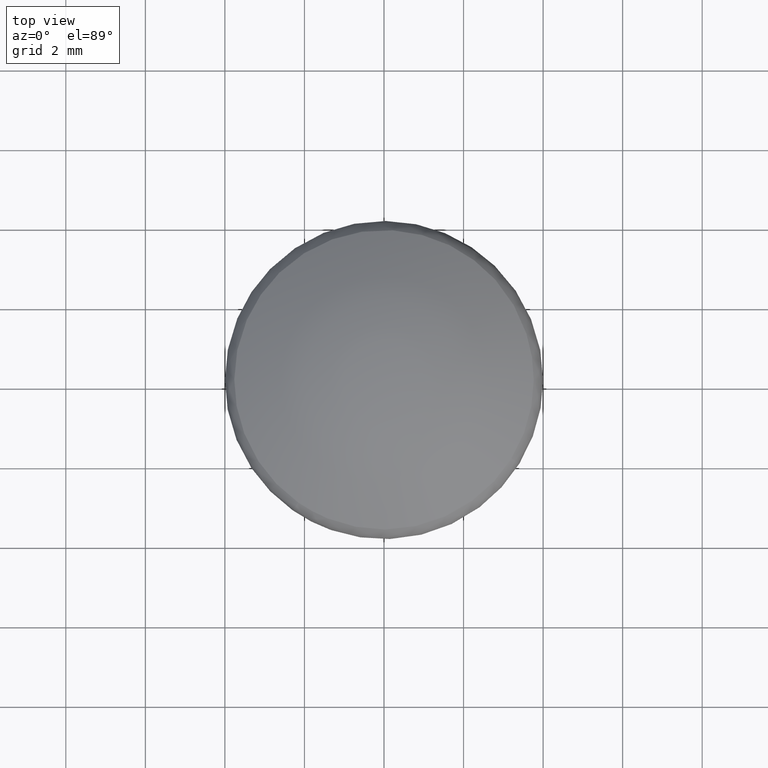
[diagram: clean part render]
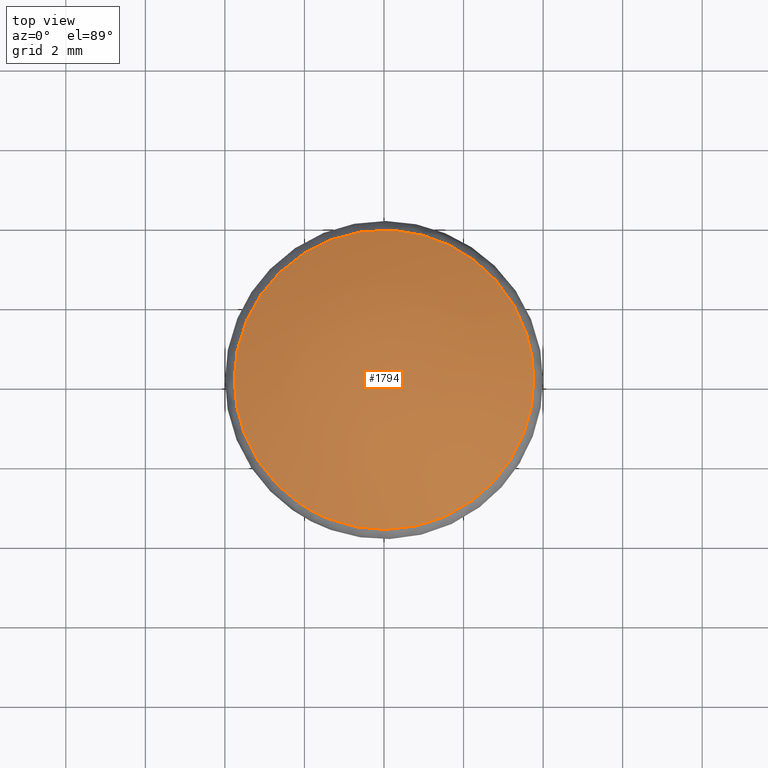
[diagram: same view with one face highlighted and labeled with its STEP entity id]
A machine part, top view. The second image highlights one B-rep face of the part: STEP entity #1794.
In plain terms, the highlighted face is a freeform B-spline surface patch.
Its self-contained STEP definition (entity closure, byte-faithful):
#90=CARTESIAN_POINT('',(-2.156803313178898,-3.084968678906296,0.424528305448922));
#91=VERTEX_POINT('',#90);
#105=CARTESIAN_POINT('',(-3.764150937455025,0.0,0.424528305583546));
#106=VERTEX_POINT('',#105);
#107=CARTESIAN_POINT('',(-2.156803313178898,-3.084968678906296,0.424528305448922));
#108=CARTESIAN_POINT('',(-3.764150937455026,-1.961218961121726,0.424528305583546));
#109=CARTESIAN_POINT('',(-3.764150937455025,0.0,0.424528305583546));
#117=(BOUNDED_CURVE()B_SPLINE_CURVE(2,(#107,#108,#109),.UNSPECIFIED.,.F.,.U.)B_SPLINE_CURVE_WITH_KNOTS((3,3),(0.848488271146942,1.0),.UNSPECIFIED.)CURVE()GEOMETRIC_REPRESENTATION_ITEM()RATIONAL_B_SPLINE_CURVE((0.860141114567185,0.822492968192948,1.0))REPRESENTATION_ITEM(''));
#118=EDGE_CURVE('',#91,#106,#117,.T.);
#120=CARTESIAN_POINT('',(3.764150937455025,0.0,0.424528305583546));
#121=VERTEX_POINT('',#120);
#122=CARTESIAN_POINT('',(-3.764150937455025,0.0,0.424528305583546));
#123=CARTESIAN_POINT('',(-3.764150937455025,3.764150937455025,0.424528305583546));
#124=CARTESIAN_POINT('',(0.0,3.764150937455025,0.424528305583546));
#125=CARTESIAN_POINT('',(3.764150937455025,3.764150937455025,0.424528305583546));
#126=CARTESIAN_POINT('',(3.764150937455025,0.0,0.424528305583546));
#134=(BOUNDED_CURVE()B_SPLINE_CURVE(2,(#122,#123,#124,#125,#126),.UNSPECIFIED.,.F.,.U.)B_SPLINE_CURVE_WITH_KNOTS((3,2,3),(0.0,0.250000000000000,0.500000000000000),.UNSPECIFIED.)CURVE()GEOMETRIC_REPRESENTATION_ITEM()RATIONAL_B_SPLINE_CURVE((1.0,0.707106781186547,1.0,0.707106781186547,1.0))REPRESENTATION_ITEM(''));
#135=EDGE_CURVE('',#106,#121,#134,.T.);
#137=CARTESIAN_POINT('',(3.203271676476022,-1.976836575735805,0.424528305539174));
#138=VERTEX_POINT('',#137);
#139=CARTESIAN_POINT('',(3.764150937455025,0.0,0.424528305583546));
#140=CARTESIAN_POINT('',(3.764150937455026,-1.067986206951992,0.424528305583546));
#141=CARTESIAN_POINT('',(3.203271676476021,-1.976836575735804,0.424528305539174));
#149=(BOUNDED_CURVE()B_SPLINE_CURVE(2,(#139,#140,#141),.UNSPECIFIED.,.F.,.U.)B_SPLINE_CURVE_WITH_KNOTS((3,3),(0.500000000000000,0.589762955611996),.UNSPECIFIED.)CURVE()GEOMETRIC_REPRESENTATION_ITEM()RATIONAL_B_SPLINE_CURVE((1.0,0.894836156002374,0.865190851690714))REPRESENTATION_ITEM(''));
#150=EDGE_CURVE('',#121,#138,#149,.T.);
#239=CARTESIAN_POINT('',(3.203271676476021,-1.976836575735805,0.424528305539174));
#240=CARTESIAN_POINT('',(2.100265512869993,-3.764150937455025,0.424528305583546));
#241=CARTESIAN_POINT('',(0.0,-3.764150937455025,0.424528305583546));
#242=CARTESIAN_POINT('',(-1.185339673960578,-3.764150937455025,0.424528305583546));
#243=CARTESIAN_POINT('',(-2.156803313178898,-3.084968678906297,0.424528305448922));
#251=(BOUNDED_CURVE()B_SPLINE_CURVE(2,(#239,#240,#241,#242,#243),.UNSPECIFIED.,.F.,.U.)B_SPLINE_CURVE_WITH_KNOTS((3,2,3),(0.589762955611996,0.750000000000000,0.848488271146943),.UNSPECIFIED.)CURVE()GEOMETRIC_REPRESENTATION_ITEM()RATIONAL_B_SPLINE_CURVE((0.865190851690714,0.812270625184174,1.0,0.884613812993599,0.860141114567184))REPRESENTATION_ITEM(''));
#252=EDGE_CURVE('',#138,#91,#251,.T.);
#1764=CARTESIAN_POINT('',(-3.739495739176711,-3.741088803064657,-0.851526297939470));
#1765=CARTESIAN_POINT('',(-2.044399148842027,-4.075468827911038,0.214335049098429));
#1766=CARTESIAN_POINT('',(2.032932112218476,-4.075481569648010,0.224320623338421));
#1767=CARTESIAN_POINT('',(3.742417600390013,-3.735899953074418,-0.849752671859856));
#1768=CARTESIAN_POINT('',(-4.075886200967815,-2.042165313922582,0.216436628456218));
#1769=CARTESIAN_POINT('',(-2.247092331311585,-2.243046198156596,1.491661765661172));
#1770=CARTESIAN_POINT('',(2.231067226371531,-2.243060192489541,1.502628987076029));
#1771=CARTESIAN_POINT('',(4.075439899857084,-2.039084930627625,0.216751803808960));
#1772=CARTESIAN_POINT('',(-4.075886200967815,2.036386363252630,0.221640919310404));
#1773=CARTESIAN_POINT('',(-2.247092331311585,2.234906771171281,1.497375698333441));
#1774=CARTESIAN_POINT('',(2.231067226371531,2.234892776838335,1.508342919748299));
#1775=CARTESIAN_POINT('',(4.075439899857084,2.033291353933022,0.221948214772967));
#1776=CARTESIAN_POINT('',(-3.736719228339792,3.742902063194160,-0.850773512505660));
#1777=CARTESIAN_POINT('',(-2.042739618651301,4.075541879547934,0.214297015322643));
#1778=CARTESIAN_POINT('',(2.031309900756927,4.075529148066469,0.224274552424417));
#1779=CARTESIAN_POINT('',(3.739668544915684,3.737693082495323,-0.849002240867905));
#1787=(BOUNDED_SURFACE()B_SPLINE_SURFACE(2,2,((#1764,#1768,#1772,#1776),(#1765,#1769,#1773,#1777),(#1766,#1770,#1774,#1778),(#1767,#1771,#1775,#1779)),.UNSPECIFIED.,.F.,.F.,.U.)B_SPLINE_SURFACE_WITH_KNOTS((3,1,3),(3,1,3),(0.0,4.250763369674740,8.537509080524995),(0.0,4.258987539330646,8.537096572627238),.UNSPECIFIED.)GEOMETRIC_REPRESENTATION_ITEM()RATIONAL_B_SPLINE_SURFACE(((1.196233768013842,1.097927235883226,1.097927235883226,1.197118479472623),(1.098306532130617,1.0,1.0,1.099191243589397),(1.098306532130617,1.0,1.0,1.099191243589397),(1.197898675986494,1.099592143855878,1.099592143855878,1.198783387445275)))REPRESENTATION_ITEM('')SURFACE());
#1788=ORIENTED_EDGE('',*,*,#118,.F.);
#1789=ORIENTED_EDGE('',*,*,#252,.F.);
#1790=ORIENTED_EDGE('',*,*,#150,.F.);
#1791=ORIENTED_EDGE('',*,*,#135,.F.);
#1792=EDGE_LOOP('',(#1788,#1789,#1790,#1791));
#1793=FACE_OUTER_BOUND('',#1792,.T.);
#1794=ADVANCED_FACE('',(#1793),#1787,.T.);